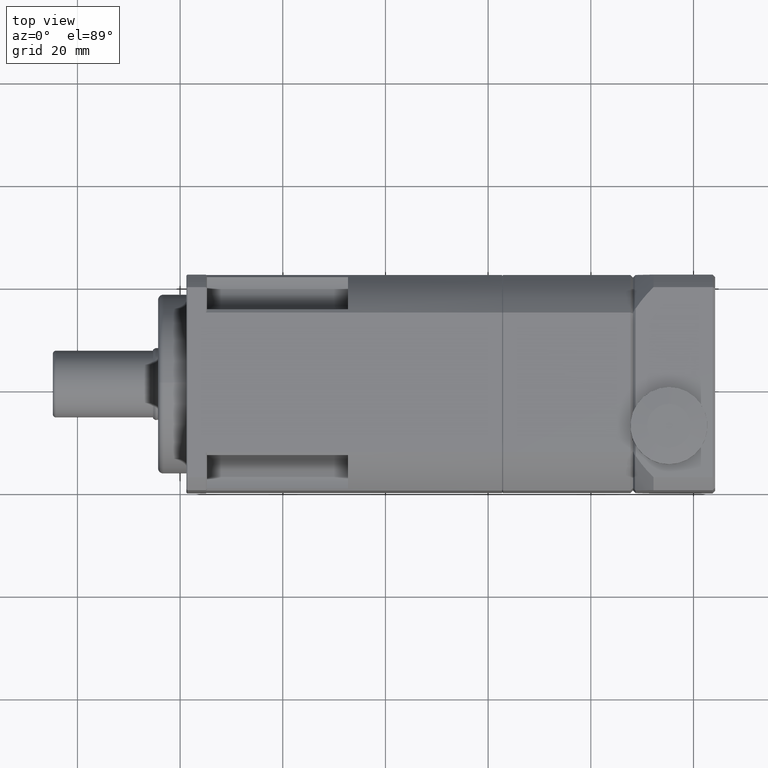
[diagram: clean part render]
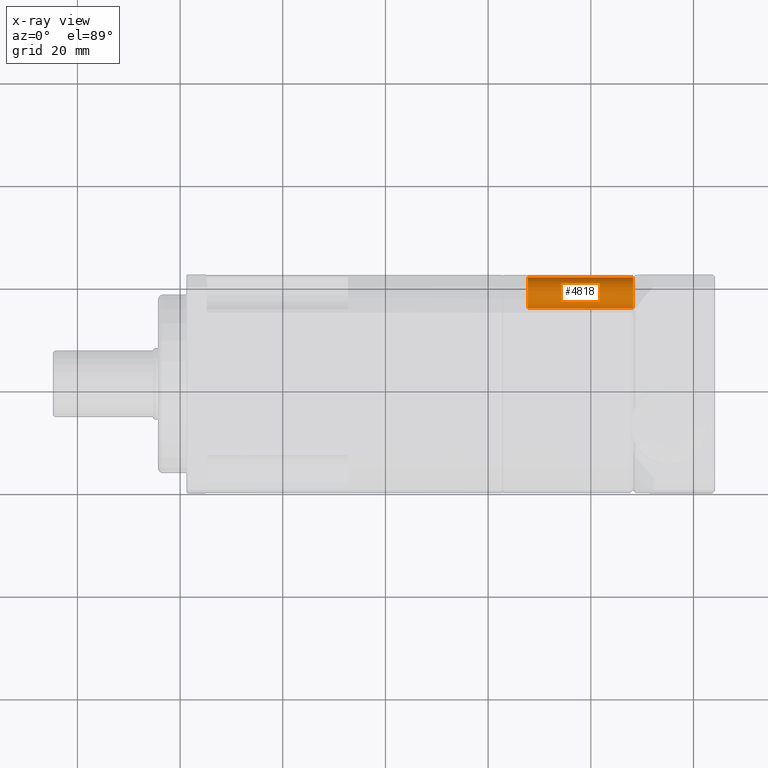
[diagram: x-ray — body ghosted, one internal face saturated and labeled with its STEP entity id]
A machine part, top view, then the same camera in x-ray: the body is ghosted and one INTERNAL B-rep face — a face not visible from any outside direction — is saturated and labeled: STEP entity #4818.
In plain terms, the highlighted cylindrical surface (bore or boss wall) has radius 3 mm, axis along (1, 0, -0).
Its self-contained STEP definition (entity closure, byte-faithful):
#17=ELLIPSE('',#5280,4.24264068711929,3.);
#911=FACE_BOUND('',#1515,.T.);
#1124=FACE_OUTER_BOUND('',#1514,.T.);
#1514=EDGE_LOOP('',(#3608));
#1515=EDGE_LOOP('',(#3609,#3610));
#1828=CIRCLE('',#5127,3.);
#1916=CIRCLE('',#5294,3.);
#2134=VERTEX_POINT('',#7349);
#2135=VERTEX_POINT('',#7350);
#2255=VERTEX_POINT('',#7838);
#2586=EDGE_CURVE('',#2134,#2135,#1828,.T.);
#2747=EDGE_CURVE('',#2135,#2134,#17,.T.);
#2762=EDGE_CURVE('',#2255,#2255,#1916,.T.);
#3608=ORIENTED_EDGE('',*,*,#2762,.F.);
#3609=ORIENTED_EDGE('',*,*,#2747,.F.);
#3610=ORIENTED_EDGE('',*,*,#2586,.F.);
#4423=CYLINDRICAL_SURFACE('',#5293,3.);
#4818=ADVANCED_FACE('',(#1124,#911),#4423,.F.);
#5127=AXIS2_PLACEMENT_3D('',#7351,#5880,#5881);
#5280=AXIS2_PLACEMENT_3D('',#7804,#6236,#6237);
#5293=AXIS2_PLACEMENT_3D('',#7837,#6270,#6271);
#5294=AXIS2_PLACEMENT_3D('',#7839,#6272,#6273);
#5880=DIRECTION('center_axis',(-1.,-1.06348745799565E-16,2.09341157557153E-15));
#5881=DIRECTION('ref_axis',(1.06348745799584E-16,-1.,9.0429298116858E-15));
#6236=DIRECTION('center_axis',(-0.707106781186546,-0.707106781186549,7.44562387387727E-15));
#6237=DIRECTION('ref_axis',(0.707106781186549,-0.707106781186546,4.91405147073596E-15));
#6270=DIRECTION('center_axis',(1.,1.06348745799565E-16,-2.09341157557153E-15));
#6271=DIRECTION('ref_axis',(1.06348745799584E-16,-1.,9.0429298116858E-15));
#6272=DIRECTION('center_axis',(1.,1.06348745799565E-16,-2.09341157557153E-15));
#6273=DIRECTION('ref_axis',(1.06348745799584E-16,-1.,9.0429298116858E-15));
#7349=CARTESIAN_POINT('',(48.2159950143862,-18.3674851319124,-17.1086202998224));
#7350=CARTESIAN_POINT('',(48.2159950143862,-18.3674851319124,-15.5952408227667));
#7351=CARTESIAN_POINT('Origin',(48.2159950143862,-21.2704871366665,-16.3519305612945));
#7804=CARTESIAN_POINT('Origin',(51.1189970191404,-21.2704871366665,-16.3519305612945));
#7837=CARTESIAN_POINT('Origin',(37.9659950143862,-21.2704871366665,-16.3519305612945));
#7838=CARTESIAN_POINT('',(27.7159950143862,-24.2704871366665,-16.3519305612944));
#7839=CARTESIAN_POINT('Origin',(27.7159950143862,-21.2704871366665,-16.3519305612944));